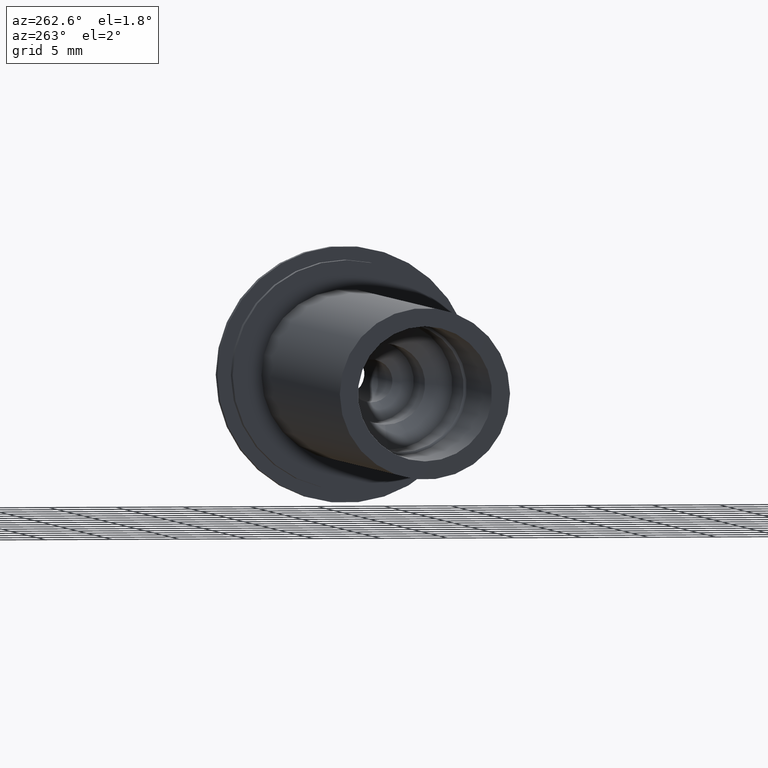
[diagram: clean part render]
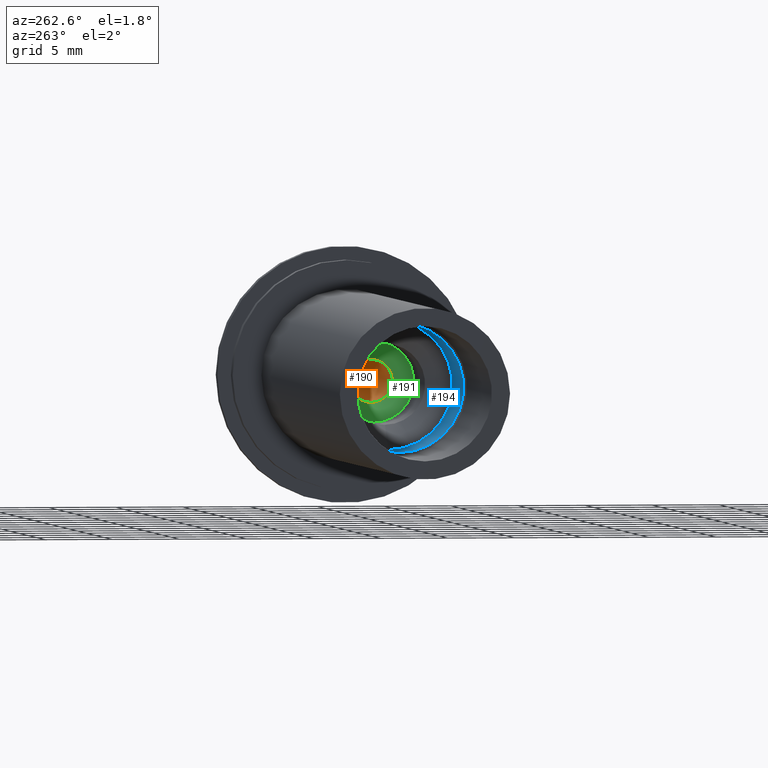
[diagram: same view with three faces highlighted in distinct colors, each labeled with its STEP entity id]
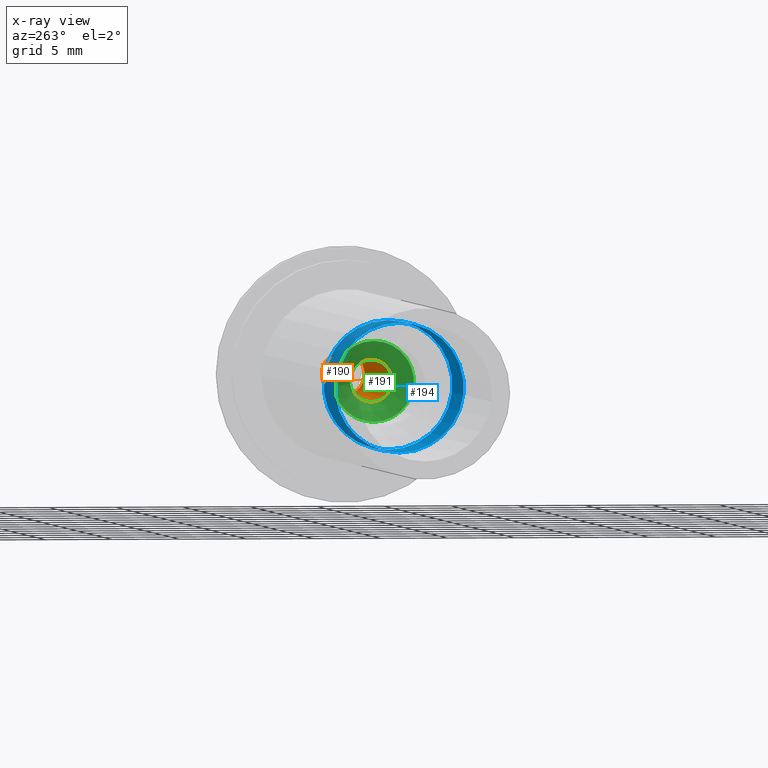
[diagram: x-ray of the same camera — body ghosted, the three highlighted faces saturated]
A machine part, auxiliary view with three faces highlighted in distinct colors.
The next image is the same camera in x-ray (body ghosted, the three faces saturated) — at least one of them is partly hidden behind the body in this view.
Their STEP definitions:

[orange] entity #190 — the highlighted cylindrical surface (bore or boss wall) has radius 1.5875 mm, axis along (1, 0, 0).
#26=FACE_OUTER_BOUND('',#40,.T.);
#40=EDGE_LOOP('',(#133,#134,#135,#136,#137));
#58=LINE('',#331,#68);
#68=VECTOR('',#262,1.5875);
#78=CIRCLE('',#228,1.5875);
#79=CIRCLE('',#229,1.5875);
#80=CIRCLE('',#230,1.5875);
#93=VERTEX_POINT('',#328);
#94=VERTEX_POINT('',#330);
#95=VERTEX_POINT('',#332);
#108=EDGE_CURVE('',#93,#93,#78,.T.);
#109=EDGE_CURVE('',#93,#94,#58,.T.);
#110=EDGE_CURVE('',#95,#94,#79,.T.);
#111=EDGE_CURVE('',#94,#95,#80,.T.);
#133=ORIENTED_EDGE('',*,*,#108,.F.);
#134=ORIENTED_EDGE('',*,*,#109,.T.);
#135=ORIENTED_EDGE('',*,*,#110,.F.);
#136=ORIENTED_EDGE('',*,*,#111,.F.);
#137=ORIENTED_EDGE('',*,*,#109,.F.);
#183=CYLINDRICAL_SURFACE('',#227,1.5875);
#190=ADVANCED_FACE('',(#26),#183,.F.);
#227=AXIS2_PLACEMENT_3D('',#327,#258,#259);
#228=AXIS2_PLACEMENT_3D('',#329,#260,#261);
#229=AXIS2_PLACEMENT_3D('',#333,#263,#264);
#230=AXIS2_PLACEMENT_3D('',#334,#265,#266);
#258=DIRECTION('center_axis',(1.,0.,0.));
#259=DIRECTION('ref_axis',(0.,0.,-1.));
#260=DIRECTION('center_axis',(-1.,0.,0.));
#261=DIRECTION('ref_axis',(0.,0.,-1.));
#262=DIRECTION('',(-1.,0.,0.));
#263=DIRECTION('center_axis',(1.,0.,0.));
#264=DIRECTION('ref_axis',(0.,0.,-1.));
#265=DIRECTION('center_axis',(1.,0.,0.));
#266=DIRECTION('ref_axis',(0.,0.,-1.));
#327=CARTESIAN_POINT('Origin',(-54.1387107345567,0.,0.));
#328=CARTESIAN_POINT('',(1.77635683940025E-14,-1.94412679364642E-16,1.5875));
#329=CARTESIAN_POINT('Origin',(1.77635683940025E-14,0.,0.));
#330=CARTESIAN_POINT('',(-16.0875,-1.94412679364642E-16,1.5875));
#331=CARTESIAN_POINT('',(-54.1387107345567,-1.94412679364642E-16,1.5875));
#332=CARTESIAN_POINT('',(-16.0875,-1.94412679364642E-16,-1.5875));
#333=CARTESIAN_POINT('Origin',(-16.0875,0.,0.));
#334=CARTESIAN_POINT('Origin',(-16.0875,0.,0.));

[blue] entity #194 — the highlighted cylindrical surface (bore or boss wall) has radius 4.8 mm, axis along (-1, 0, 0).
#30=FACE_OUTER_BOUND('',#44,.T.);
#44=EDGE_LOOP('',(#151,#152,#153,#154));
#62=LINE('',#350,#72);
#72=VECTOR('',#286,4.8);
#83=CIRCLE('',#236,4.8);
#84=CIRCLE('',#238,4.8);
#98=VERTEX_POINT('',#344);
#99=VERTEX_POINT('',#348);
#116=EDGE_CURVE('',#98,#98,#83,.T.);
#118=EDGE_CURVE('',#99,#99,#84,.T.);
#119=EDGE_CURVE('',#99,#98,#62,.T.);
#151=ORIENTED_EDGE('',*,*,#118,.F.);
#152=ORIENTED_EDGE('',*,*,#119,.T.);
#153=ORIENTED_EDGE('',*,*,#116,.F.);
#154=ORIENTED_EDGE('',*,*,#119,.F.);
#185=CYLINDRICAL_SURFACE('',#237,4.8);
#194=ADVANCED_FACE('',(#30),#185,.F.);
#236=AXIS2_PLACEMENT_3D('',#345,#279,#280);
#237=AXIS2_PLACEMENT_3D('',#347,#282,#283);
#238=AXIS2_PLACEMENT_3D('',#349,#284,#285);
#279=DIRECTION('center_axis',(-1.,0.,0.));
#280=DIRECTION('ref_axis',(0.,0.,1.));
#282=DIRECTION('center_axis',(-1.,0.,0.));
#283=DIRECTION('ref_axis',(0.,0.,1.));
#284=DIRECTION('center_axis',(1.,0.,0.));
#285=DIRECTION('ref_axis',(0.,0.,1.));
#286=DIRECTION('',(1.,0.,0.));
#344=CARTESIAN_POINT('',(-25.8,-5.8783046359073E-16,-4.8));
#345=CARTESIAN_POINT('Origin',(-25.8,0.,0.));
#347=CARTESIAN_POINT('Origin',(-36.4,0.,0.));
#348=CARTESIAN_POINT('',(-32.3,5.87830463590729E-16,-4.8));
#349=CARTESIAN_POINT('Origin',(-32.3,0.,0.));
#350=CARTESIAN_POINT('',(-36.4,-5.87830463590729E-16,-4.8));

[green] entity #191 — the highlighted conical surface has half-angle 45 deg.
#23=CONICAL_SURFACE('',#231,1.5,0.785398163397448);
#27=FACE_OUTER_BOUND('',#41,.T.);
#41=EDGE_LOOP('',(#138,#139,#140,#141,#142));
#59=LINE('',#338,#69);
#69=VECTOR('',#271,1.5);
#79=CIRCLE('',#229,1.5875);
#80=CIRCLE('',#230,1.5875);
#81=CIRCLE('',#232,3.);
#94=VERTEX_POINT('',#330);
#95=VERTEX_POINT('',#332);
#96=VERTEX_POINT('',#336);
#110=EDGE_CURVE('',#95,#94,#79,.T.);
#111=EDGE_CURVE('',#94,#95,#80,.T.);
#112=EDGE_CURVE('',#96,#96,#81,.T.);
#113=EDGE_CURVE('',#96,#95,#59,.T.);
#138=ORIENTED_EDGE('',*,*,#112,.T.);
#139=ORIENTED_EDGE('',*,*,#113,.T.);
#140=ORIENTED_EDGE('',*,*,#110,.T.);
#141=ORIENTED_EDGE('',*,*,#111,.T.);
#142=ORIENTED_EDGE('',*,*,#113,.F.);
#191=ADVANCED_FACE('',(#27),#23,.F.);
#229=AXIS2_PLACEMENT_3D('',#333,#263,#264);
#230=AXIS2_PLACEMENT_3D('',#334,#265,#266);
#231=AXIS2_PLACEMENT_3D('',#335,#267,#268);
#232=AXIS2_PLACEMENT_3D('',#337,#269,#270);
#263=DIRECTION('center_axis',(1.,0.,0.));
#264=DIRECTION('ref_axis',(0.,0.,-1.));
#265=DIRECTION('center_axis',(1.,0.,0.));
#266=DIRECTION('ref_axis',(0.,0.,-1.));
#267=DIRECTION('center_axis',(-1.,0.,0.));
#268=DIRECTION('ref_axis',(0.,0.,1.));
#269=DIRECTION('center_axis',(-1.,0.,0.));
#270=DIRECTION('ref_axis',(0.,0.,1.));
#271=DIRECTION('',(0.707106781186548,8.65956056235493E-17,0.707106781186547));
#330=CARTESIAN_POINT('',(-16.0875,-1.94412679364642E-16,1.5875));
#332=CARTESIAN_POINT('',(-16.0875,-1.94412679364642E-16,-1.5875));
#333=CARTESIAN_POINT('Origin',(-16.0875,0.,0.));
#334=CARTESIAN_POINT('Origin',(-16.0875,0.,0.));
#335=CARTESIAN_POINT('Origin',(-16.,0.,0.));
#336=CARTESIAN_POINT('',(-17.5,-3.67394039744206E-16,-3.));
#337=CARTESIAN_POINT('Origin',(-17.5,0.,0.));
#338=CARTESIAN_POINT('',(-16.,-1.83697019872103E-16,-1.5));